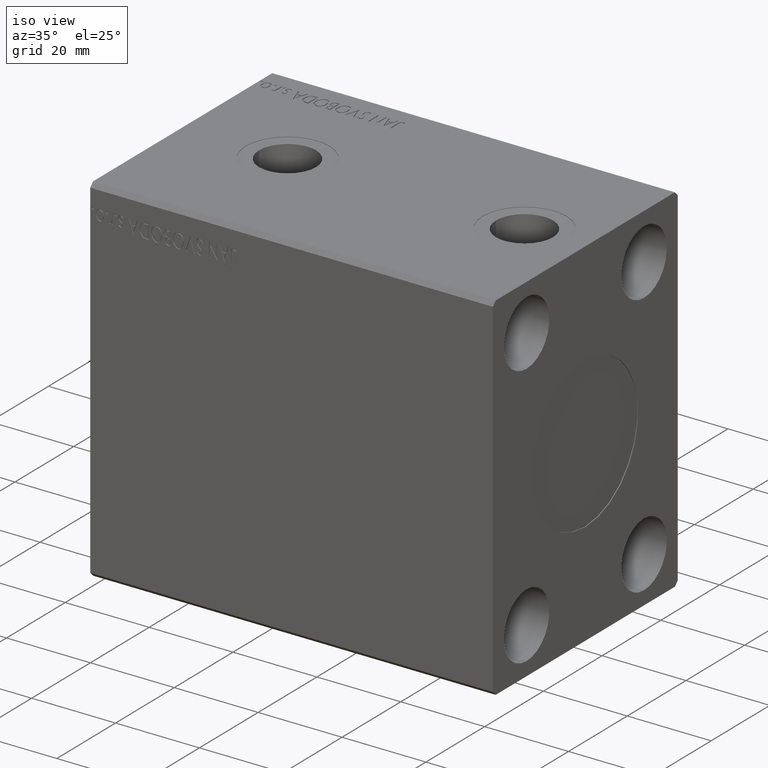
[diagram: clean part render]
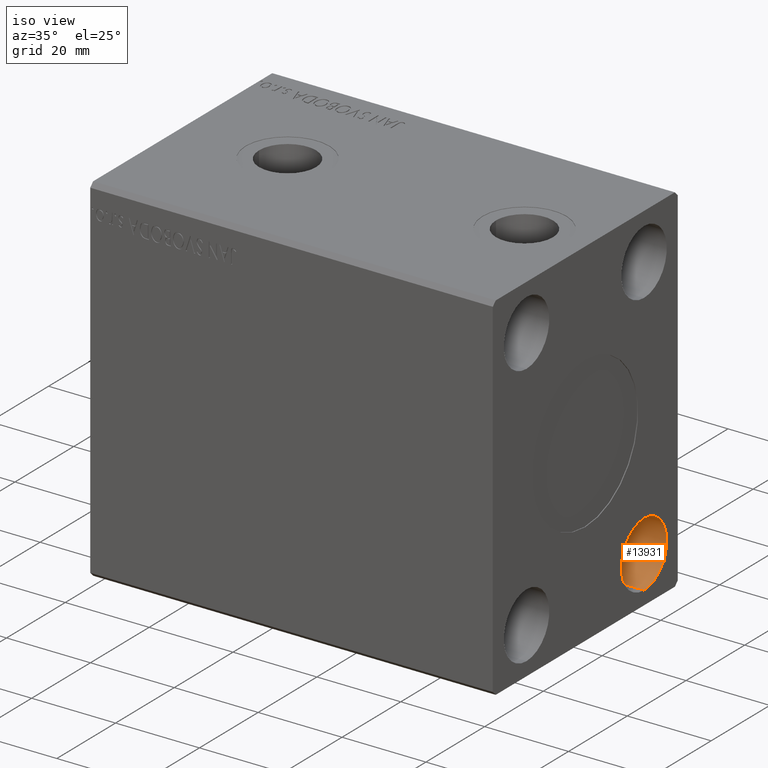
[diagram: same view with one face highlighted and labeled with its STEP entity id]
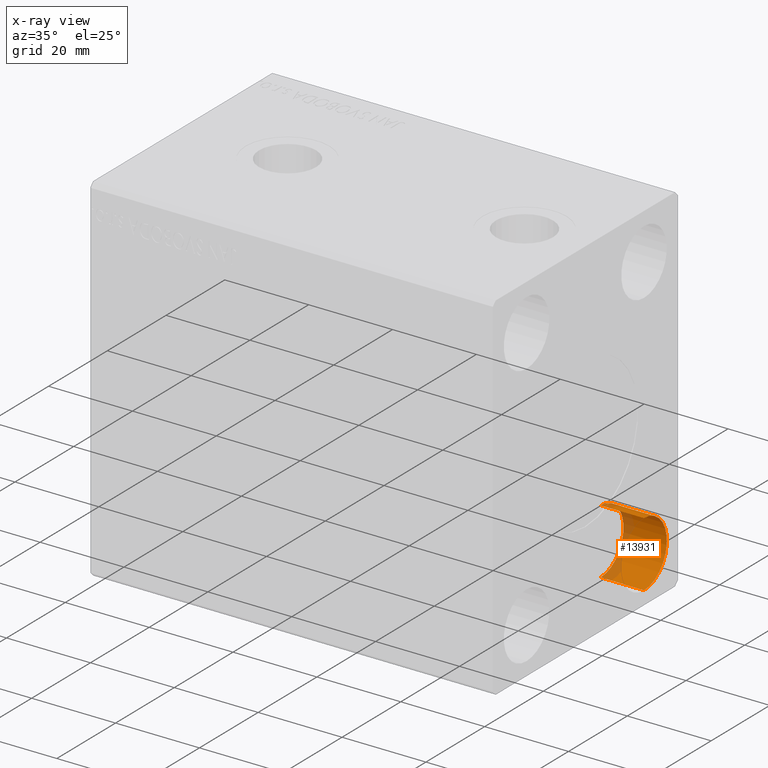
[diagram: x-ray of the same camera — body ghosted, the highlighted face saturated]
A machine part, iso view. The second image highlights one B-rep face of the part: STEP entity #13931.
The next image is the same camera in x-ray: the body ghosted, the highlighted face saturated — about 18% of this face is hidden behind the body in this view.
In plain terms, the highlighted cylindrical surface (partial cylindrical patch) has radius 7.75 mm, axis along (1, -0, -0).
Its self-contained STEP definition (entity closure, byte-faithful):
#1490 = VERTEX_POINT ( 'NONE', #7386 ) ;
#1515 = EDGE_CURVE ( 'NONE', #2797, #4752, #32557, .T. ) ;
#2797 = VERTEX_POINT ( 'NONE', #25149 ) ;
#3942 = DIRECTION ( 'NONE',  ( -1.000000000000000000, -0.000000000000000000, -0.000000000000000000 ) ) ;
#4752 = VERTEX_POINT ( 'NONE', #11447 ) ;
#6358 = AXIS2_PLACEMENT_3D ( 'NONE', #7713, #20829, #7932 ) ;
#7386 = CARTESIAN_POINT ( 'NONE',  ( 96.00000000000000000, 20.00000000000000355, -39.24999999999998579 ) ) ;
#7446 = DIRECTION ( 'NONE',  ( 0.000000000000000000, 0.000000000000000000, 1.000000000000000000 ) ) ;
#7713 = CARTESIAN_POINT ( 'NONE',  ( 85.67000000000000171, 20.00000000000000355, -31.49999999999998579 ) ) ;
#7932 = DIRECTION ( 'NONE',  ( 0.000000000000000000, 0.000000000000000000, -1.000000000000000000 ) ) ;
#9312 = VERTEX_POINT ( 'NONE', #21164 ) ;
#10607 = CARTESIAN_POINT ( 'NONE',  ( 85.67000000000000171, 20.00000000000000355, -31.49999999999998579 ) ) ;
#10849 = VECTOR ( 'NONE', #24976, 1000.000000000000000 ) ;
#11447 = CARTESIAN_POINT ( 'NONE',  ( 85.67000000000000171, 20.00000000000000355, -39.24999999999998579 ) ) ;
#13931 = ADVANCED_FACE ( 'NONE', ( #40786 ), #37146, .F. ) ;
#14459 = DIRECTION ( 'NONE',  ( 0.000000000000000000, 0.000000000000000000, 1.000000000000000000 ) ) ;
#16979 = AXIS2_PLACEMENT_3D ( 'NONE', #23564, #20122, #7446 ) ;
#18777 = ORIENTED_EDGE ( 'NONE', *, *, #34893, .T. ) ;
#20122 = DIRECTION ( 'NONE',  ( -1.000000000000000000, -0.000000000000000000, -0.000000000000000000 ) ) ;
#20829 = DIRECTION ( 'NONE',  ( 1.000000000000000000, -0.000000000000000000, -0.000000000000000000 ) ) ;
#20896 = ORIENTED_EDGE ( 'NONE', *, *, #27465, .F. ) ;
#21135 = CARTESIAN_POINT ( 'NONE',  ( 85.67000000000000171, 20.00000000000000355, -39.24999999999998579 ) ) ;
#21164 = CARTESIAN_POINT ( 'NONE',  ( 96.00000000000000000, 20.00000000000000355, -23.74999999999998579 ) ) ;
#23564 = CARTESIAN_POINT ( 'NONE',  ( 96.00000000000000000, 20.00000000000000355, -31.49999999999998579 ) ) ;
#24763 = LINE ( 'NONE', #21135, #10849 ) ;
#24976 = DIRECTION ( 'NONE',  ( 1.000000000000000000, -0.000000000000000000, -0.000000000000000000 ) ) ;
#25149 = CARTESIAN_POINT ( 'NONE',  ( 85.67000000000000171, 20.00000000000000355, -23.74999999999998579 ) ) ;
#25241 = DIRECTION ( 'NONE',  ( 1.000000000000000000, -0.000000000000000000, -0.000000000000000000 ) ) ;
#27465 = EDGE_CURVE ( 'NONE', #9312, #1490, #39602, .T. ) ;
#28259 = LINE ( 'NONE', #41343, #42381 ) ;
#28906 = EDGE_CURVE ( 'NONE', #2797, #9312, #28259, .T. ) ;
#32557 = CIRCLE ( 'NONE', #35999, 7.750000000000000000 ) ;
#34893 = EDGE_CURVE ( 'NONE', #4752, #1490, #24763, .T. ) ;
#35276 = EDGE_LOOP ( 'NONE', ( #39055, #41367, #18777, #20896 ) ) ;
#35999 = AXIS2_PLACEMENT_3D ( 'NONE', #10607, #3942, #14459 ) ;
#37146 = CYLINDRICAL_SURFACE ( 'NONE', #6358, 7.750000000000000000 ) ;
#39055 = ORIENTED_EDGE ( 'NONE', *, *, #28906, .F. ) ;
#39602 = CIRCLE ( 'NONE', #16979, 7.750000000000000000 ) ;
#40786 = FACE_OUTER_BOUND ( 'NONE', #35276, .T. ) ;
#41343 = CARTESIAN_POINT ( 'NONE',  ( 85.67000000000000171, 20.00000000000000355, -23.74999999999998579 ) ) ;
#41367 = ORIENTED_EDGE ( 'NONE', *, *, #1515, .T. ) ;
#42381 = VECTOR ( 'NONE', #25241, 1000.000000000000000 ) ;